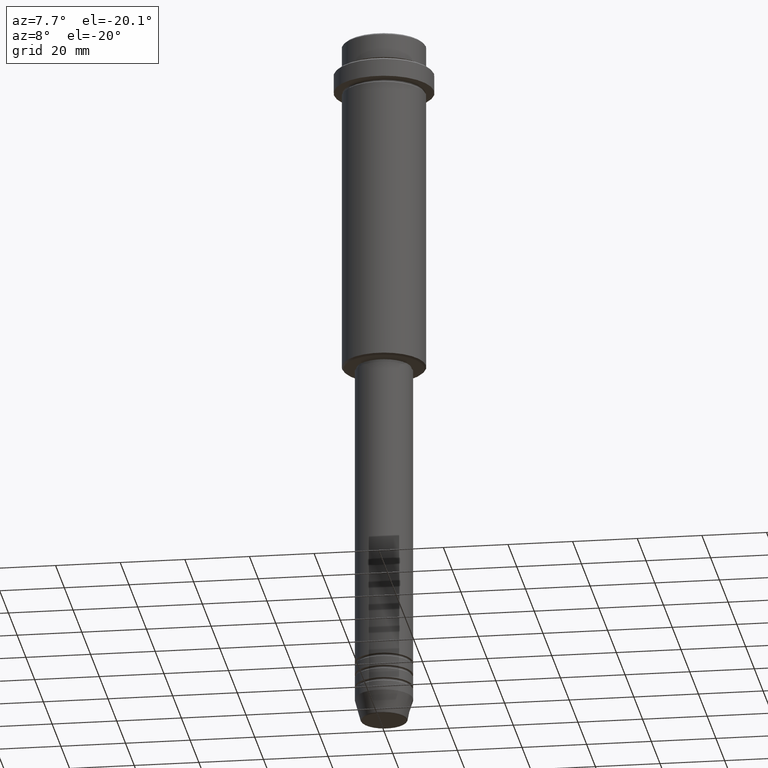
[diagram: clean part render]
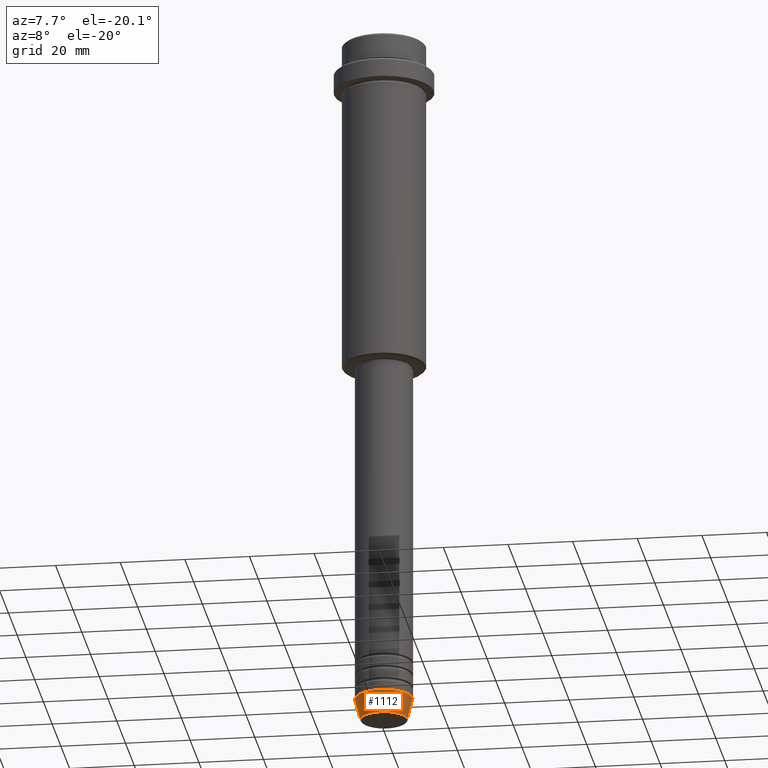
[diagram: same view with one face highlighted and labeled with its STEP entity id]
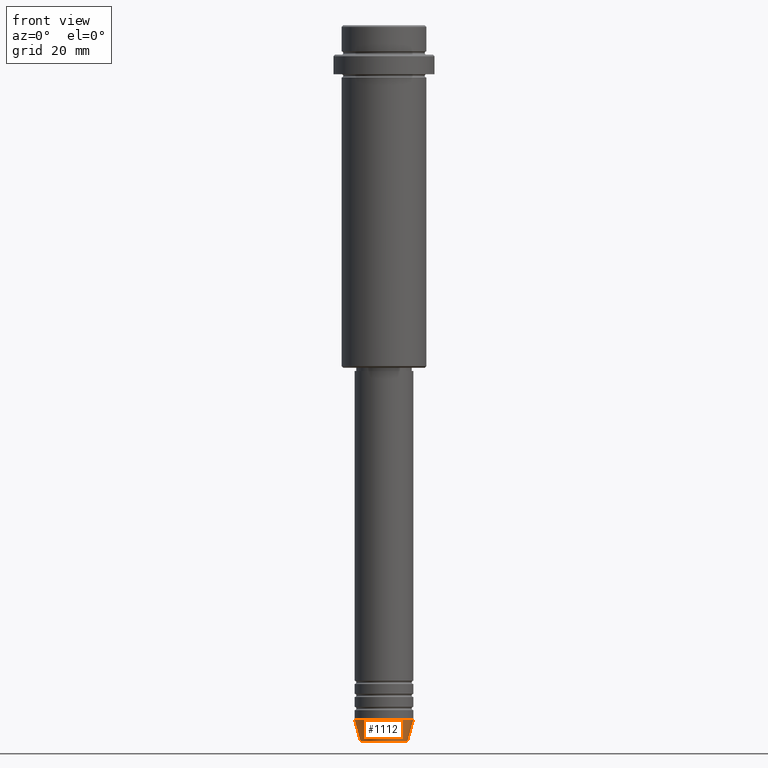
[diagram: same view with one face highlighted and labeled with its STEP entity id]
A machine part, auxiliary view. The second image highlights one B-rep face of the part: STEP entity #1112.
A second angle (front view) of the same face is appended — the face is thin or edge-on in the first view.
In plain terms, the highlighted conical surface has half-angle 15 deg.
Its self-contained STEP definition (entity closure, byte-faithful):
#56 = VERTEX_POINT ( 'NONE', #1036 ) ;
#83 = CIRCLE ( 'NONE', #936, 9.000000000000000000 ) ;
#84 = AXIS2_PLACEMENT_3D ( 'NONE', #1399, #641, #1091 ) ;
#93 = LINE ( 'NONE', #508, #488 ) ;
#226 = ORIENTED_EDGE ( 'NONE', *, *, #300, .F. ) ;
#300 = EDGE_CURVE ( 'NONE', #56, #675, #83, .T. ) ;
#309 = AXIS2_PLACEMENT_3D ( 'NONE', #1344, #679, #1123 ) ;
#375 = VERTEX_POINT ( 'NONE', #704 ) ;
#406 = CONICAL_SURFACE ( 'NONE', #309, 9.000000000000000000, 0.2617993877991491303 ) ;
#413 = EDGE_CURVE ( 'NONE', #1370, #375, #1101, .T. ) ;
#425 = LINE ( 'NONE', #532, #1219 ) ;
#433 = CARTESIAN_POINT ( 'NONE',  ( -7.223655072137194821, 9.934123627281767082E-16, -219.6294095225512706 ) ) ;
#447 = ORIENTED_EDGE ( 'NONE', *, *, #413, .T. ) ;
#470 = FACE_OUTER_BOUND ( 'NONE', #1380, .T. ) ;
#488 = VECTOR ( 'NONE', #1396, 1000.000000000000114 ) ;
#508 = CARTESIAN_POINT ( 'NONE',  ( 9.000000000000000000, 0.000000000000000000, -213.0000000000000284 ) ) ;
#519 = DIRECTION ( 'NONE',  ( -0.000000000000000000, -0.000000000000000000, 1.000000000000000000 ) ) ;
#532 = CARTESIAN_POINT ( 'NONE',  ( -9.000000000000000000, 1.102182119232617714E-15, -213.0000000000000284 ) ) ;
#539 = EDGE_CURVE ( 'NONE', #1370, #56, #425, .T. ) ;
#641 = DIRECTION ( 'NONE',  ( -0.000000000000000000, -0.000000000000000000, 1.000000000000000000 ) ) ;
#675 = VERTEX_POINT ( 'NONE', #1251 ) ;
#679 = DIRECTION ( 'NONE',  ( -0.000000000000000000, -0.000000000000000000, 1.000000000000000000 ) ) ;
#700 = EDGE_CURVE ( 'NONE', #375, #675, #93, .T. ) ;
#704 = CARTESIAN_POINT ( 'NONE',  ( 7.223655072137194821, 0.000000000000000000, -219.6294095225512706 ) ) ;
#848 = DIRECTION ( 'NONE',  ( -0.2588190451025205174, 3.169619151431761243E-17, 0.9659258262890684232 ) ) ;
#936 = AXIS2_PLACEMENT_3D ( 'NONE', #1153, #519, #1186 ) ;
#982 = ORIENTED_EDGE ( 'NONE', *, *, #539, .F. ) ;
#1036 = CARTESIAN_POINT ( 'NONE',  ( -9.000000000000000000, 1.102182119232617714E-15, -213.0000000000000284 ) ) ;
#1091 = DIRECTION ( 'NONE',  ( 1.000000000000000000, 0.000000000000000000, 0.000000000000000000 ) ) ;
#1101 = CIRCLE ( 'NONE', #84, 7.223655072137194821 ) ;
#1112 = ADVANCED_FACE ( 'NONE', ( #470 ), #406, .T. ) ;
#1123 = DIRECTION ( 'NONE',  ( 1.000000000000000000, 0.000000000000000000, 0.000000000000000000 ) ) ;
#1153 = CARTESIAN_POINT ( 'NONE',  ( 0.000000000000000000, 0.000000000000000000, -213.0000000000000284 ) ) ;
#1186 = DIRECTION ( 'NONE',  ( 1.000000000000000000, 0.000000000000000000, 0.000000000000000000 ) ) ;
#1219 = VECTOR ( 'NONE', #848, 1000.000000000000114 ) ;
#1251 = CARTESIAN_POINT ( 'NONE',  ( 9.000000000000000000, 0.000000000000000000, -213.0000000000000284 ) ) ;
#1344 = CARTESIAN_POINT ( 'NONE',  ( 0.000000000000000000, 0.000000000000000000, -213.0000000000000284 ) ) ;
#1347 = ORIENTED_EDGE ( 'NONE', *, *, #700, .T. ) ;
#1370 = VERTEX_POINT ( 'NONE', #433 ) ;
#1380 = EDGE_LOOP ( 'NONE', ( #982, #447, #1347, #226 ) ) ;
#1396 = DIRECTION ( 'NONE',  ( 0.2588190451025205174, 0.000000000000000000, 0.9659258262890684232 ) ) ;
#1399 = CARTESIAN_POINT ( 'NONE',  ( 0.000000000000000000, 0.000000000000000000, -219.6294095225512706 ) ) ;